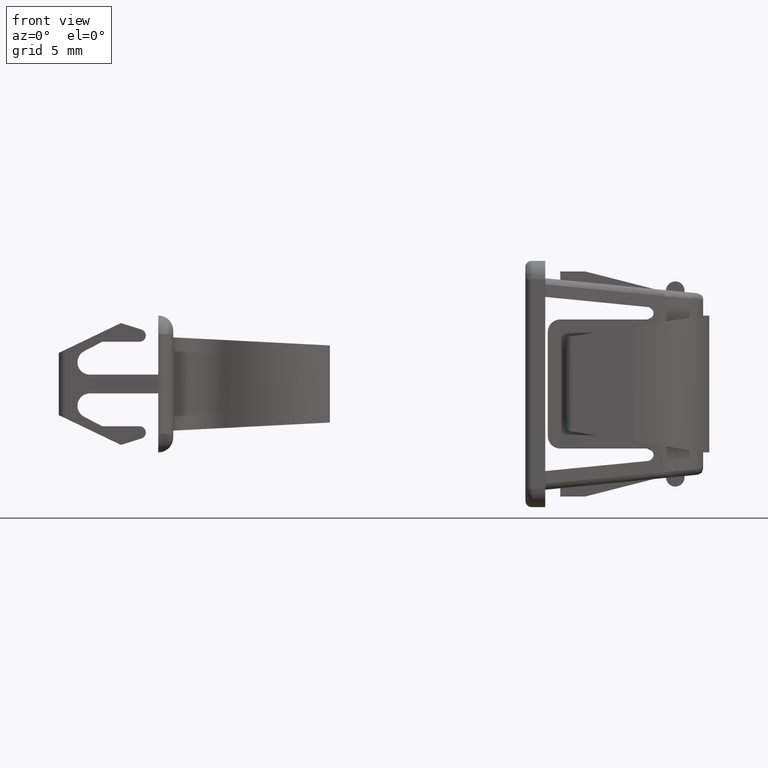
[diagram: clean part render]
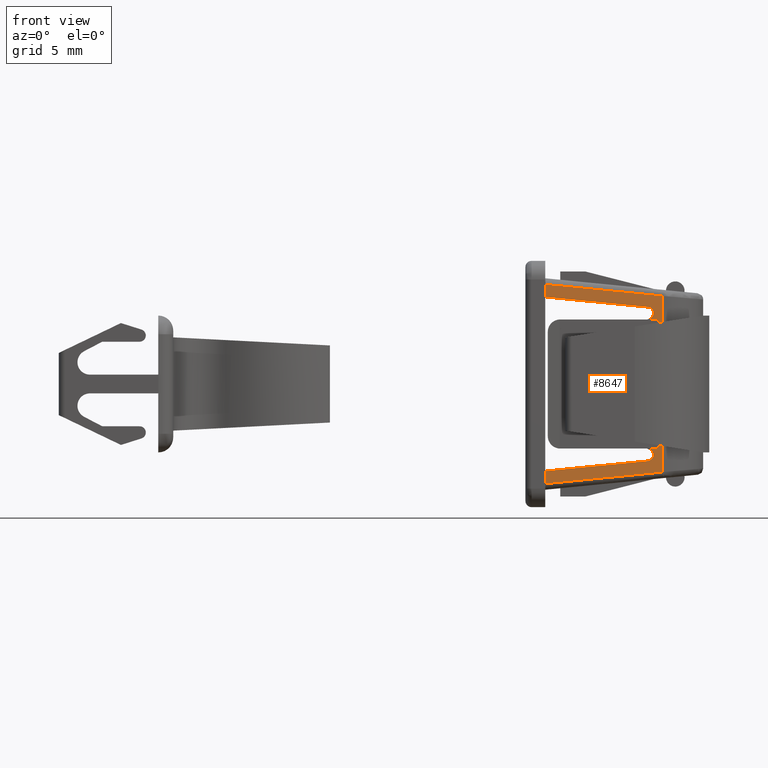
[diagram: same view with one face highlighted and labeled with its STEP entity id]
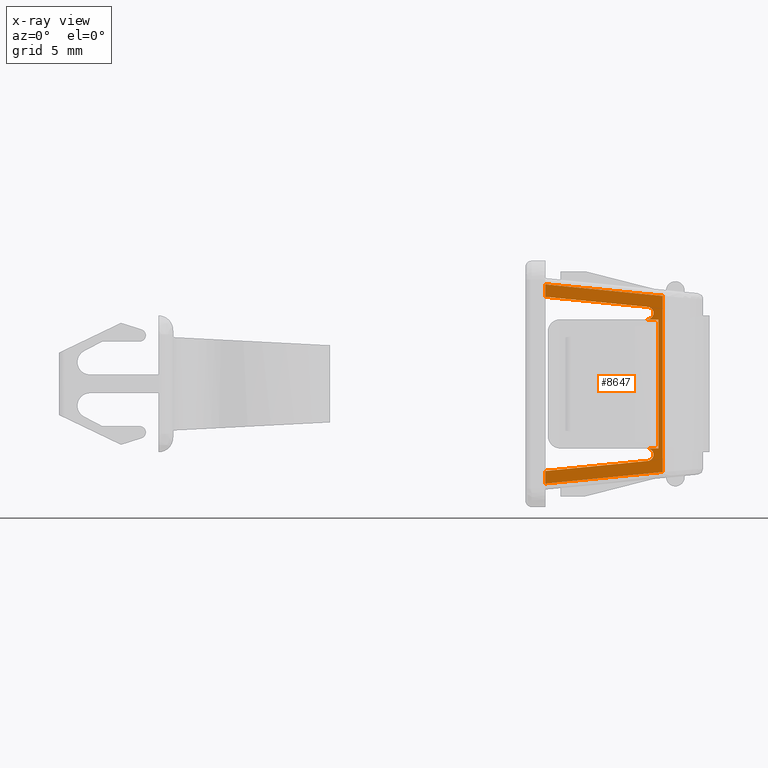
[diagram: x-ray of the same camera — body ghosted, the highlighted face saturated]
A machine part, front view. The second image highlights one B-rep face of the part: STEP entity #8647.
The next image is the same camera in x-ray: the body ghosted, the highlighted face saturated — about 0% of this face is hidden behind the body in this view.
In plain terms, the highlighted face is a freeform B-spline surface patch.
Its self-contained STEP definition (entity closure, byte-faithful):
#3408=CARTESIAN_POINT('',(1.600006000000120,-5.749984999999900,6.999995952759200));
#3409=VERTEX_POINT('',#3408);
#3410=CARTESIAN_POINT('',(1.600005999999895,-5.749984999999930,8.006895530063730));
#3411=VERTEX_POINT('',#3410);
#3412=CARTESIAN_POINT('',(1.600006000000120,-5.749984999999900,6.999995952759200));
#3413=CARTESIAN_POINT('',(1.600005999999895,-5.749984999999930,8.006895530063730));
#3414=QUASI_UNIFORM_CURVE('',1,(#3412,#3413),.UNSPECIFIED.,.F.,.U.);
#3415=EDGE_CURVE('',#3409,#3411,#3414,.T.);
#3505=CARTESIAN_POINT('',(1.600005999999895,-5.749984999999930,-8.006894479112740));
#3506=VERTEX_POINT('',#3505);
#3520=CARTESIAN_POINT('',(1.600005999999895,-5.749984999999930,-6.999995999999999));
#3521=VERTEX_POINT('',#3520);
#3522=CARTESIAN_POINT('',(1.600005999999895,-5.749984999999930,-8.006894479112740));
#3523=CARTESIAN_POINT('',(1.600005999999895,-5.749984999999930,-6.999995999999999));
#3524=QUASI_UNIFORM_CURVE('',1,(#3522,#3523),.UNSPECIFIED.,.F.,.U.);
#3525=EDGE_CURVE('',#3506,#3521,#3524,.T.);
#5652=CARTESIAN_POINT('',(11.047156694788740,-3.929597809131050,-7.076996171099360));
#5653=VERTEX_POINT('',#5652);
#5722=CARTESIAN_POINT('',(1.600005999999895,-5.749984999999930,-8.006894479112740));
#5723=CARTESIAN_POINT('',(11.047156694788740,-3.929597809131050,-7.076996171099360));
#5724=QUASI_UNIFORM_CURVE('',1,(#5722,#5723),.UNSPECIFIED.,.F.,.U.);
#5725=EDGE_CURVE('',#3506,#5653,#5724,.T.);
#5745=CARTESIAN_POINT('',(11.047156694788740,-3.929597809131050,7.076996453783846));
#5746=VERTEX_POINT('',#5745);
#5747=CARTESIAN_POINT('',(11.047156694788740,-3.929597809131050,7.076996453783846));
#5748=CARTESIAN_POINT('',(1.600005999999895,-5.749984999999930,8.006895530063730));
#5749=QUASI_UNIFORM_CURVE('',1,(#5747,#5748),.UNSPECIFIED.,.F.,.U.);
#5750=EDGE_CURVE('',#5746,#3411,#5749,.T.);
#7713=CARTESIAN_POINT('',(10.681794803802900,-4.0,-5.190498000000000));
#7714=VERTEX_POINT('',#7713);
#7720=CARTESIAN_POINT('',(10.681794803802900,-4.0,5.190499000000000));
#7721=VERTEX_POINT('',#7720);
#7722=CARTESIAN_POINT('',(10.681794803802900,-4.0,-5.190498000000000));
#7723=CARTESIAN_POINT('',(10.681794803802900,-4.0,5.190499000000000));
#7724=QUASI_UNIFORM_CURVE('',1,(#7722,#7723),.UNSPECIFIED.,.F.,.U.);
#7725=EDGE_CURVE('',#7714,#7721,#7724,.T.);
#7766=CARTESIAN_POINT('',(9.799987000000000,-4.169917013363225,5.190499000000000));
#7767=VERTEX_POINT('',#7766);
#7768=CARTESIAN_POINT('',(9.799987000000000,-4.169917013363225,5.190499000000000));
#7769=CARTESIAN_POINT('',(10.681794803802900,-4.0,5.190499000000000));
#7770=QUASI_UNIFORM_CURVE('',1,(#7768,#7769),.UNSPECIFIED.,.F.,.U.);
#7771=EDGE_CURVE('',#7767,#7721,#7770,.T.);
#7786=CARTESIAN_POINT('',(9.799987000000000,-4.169917013363225,-5.190498000000000));
#7787=VERTEX_POINT('',#7786);
#7793=CARTESIAN_POINT('',(9.799987000000000,-4.169917013363225,-5.190498000000000));
#7794=CARTESIAN_POINT('',(10.681794803802900,-4.0,-5.190498000000000));
#7795=QUASI_UNIFORM_CURVE('',1,(#7793,#7794),.UNSPECIFIED.,.F.,.U.);
#7796=EDGE_CURVE('',#7787,#7714,#7795,.T.);
#8060=CARTESIAN_POINT('',(9.850609483821970,-4.160162482701420,-6.187928763153741));
#8061=VERTEX_POINT('',#8060);
#8062=CARTESIAN_POINT('',(1.600005999999895,-5.749984999999930,-6.999995999999999));
#8063=CARTESIAN_POINT('',(9.850609483821970,-4.160162482701420,-6.187928763153741));
#8064=QUASI_UNIFORM_CURVE('',1,(#8062,#8063),.UNSPECIFIED.,.F.,.U.);
#8065=EDGE_CURVE('',#3521,#8061,#8064,.T.);
#8087=CARTESIAN_POINT('',(9.851124153902369,-4.160063310067020,6.187877117221470));
#8088=VERTEX_POINT('',#8087);
#8094=CARTESIAN_POINT('',(9.851124153902369,-4.160063310067020,6.187877117221470));
#8095=CARTESIAN_POINT('',(1.600006000000120,-5.749984999999900,6.999995952759200));
#8096=QUASI_UNIFORM_CURVE('',1,(#8094,#8095),.UNSPECIFIED.,.F.,.U.);
#8097=EDGE_CURVE('',#8088,#3409,#8096,.T.);
#8169=CARTESIAN_POINT('',(9.851124153902369,-4.160063310067020,6.187877117221470));
#8170=CARTESIAN_POINT('',(10.323654226746058,-4.069010703869064,6.139294676173411));
#8171=CARTESIAN_POINT('',(10.299331099099369,-4.073697567817821,5.664896838086705));
#8172=CARTESIAN_POINT('',(10.275007971452688,-4.078384431766580,5.190498999999999));
#8173=CARTESIAN_POINT('',(9.799987000000000,-4.169917013363225,5.190498999999999));
#8181=(BOUNDED_CURVE()B_SPLINE_CURVE(2,(#8169,#8170,#8171,#8172,#8173),.UNSPECIFIED.,.F.,.U.)B_SPLINE_CURVE_WITH_KNOTS((3,2,3),(0.0,0.500000000000000,1.0),.UNSPECIFIED.)CURVE()GEOMETRIC_REPRESENTATION_ITEM()RATIONAL_B_SPLINE_CURVE((1.0,0.724984249424285,1.0,0.724984249424285,1.0))REPRESENTATION_ITEM(''));
#8182=EDGE_CURVE('',#8088,#7767,#8181,.T.);
#8223=CARTESIAN_POINT('',(9.799987000000000,-4.169917013363225,-5.190498000000000));
#8224=CARTESIAN_POINT('',(10.275254109555263,-4.078337003005932,-5.190497999999999));
#8225=CARTESIAN_POINT('',(10.299344277696481,-4.073695028412012,-5.665154180012378));
#8226=CARTESIAN_POINT('',(10.323434445837687,-4.069053053818091,-6.139810360024756));
#8227=CARTESIAN_POINT('',(9.850609483821970,-4.160162482701420,-6.187928763153741));
#8235=(BOUNDED_CURVE()B_SPLINE_CURVE(2,(#8223,#8224,#8225,#8226,#8227),.UNSPECIFIED.,.F.,.U.)B_SPLINE_CURVE_WITH_KNOTS((3,2,3),(0.0,0.500000000000000,1.0),.UNSPECIFIED.)CURVE()GEOMETRIC_REPRESENTATION_ITEM()RATIONAL_B_SPLINE_CURVE((1.0,0.724806056809422,1.0,0.724806056809422,1.0))REPRESENTATION_ITEM(''));
#8236=EDGE_CURVE('',#7787,#8061,#8235,.T.);
#8599=CARTESIAN_POINT('',(11.047156694788740,-3.929597809131050,-7.076996171099360));
#8600=CARTESIAN_POINT('',(11.047156694788740,-3.929597809131050,7.076996453783846));
#8601=QUASI_UNIFORM_CURVE('',1,(#8599,#8600),.UNSPECIFIED.,.F.,.U.);
#8602=EDGE_CURVE('',#5653,#5746,#8601,.T.);
#8628=CARTESIAN_POINT('',(1.128120786174370,-5.840913347240357,-8.806782901168758));
#8629=CARTESIAN_POINT('',(11.519041401829620,-3.838669559543808,-8.806782901168758));
#8630=CARTESIAN_POINT('',(1.128120786174370,-5.840913347240357,8.806783522596430));
#8631=CARTESIAN_POINT('',(11.519041401829620,-3.838669559543808,8.806783522596430));
#8632=B_SPLINE_SURFACE_WITH_KNOTS('',1,1,((#8628,#8630),(#8629,#8631)),.UNSPECIFIED.,.F.,.F.,.U.,(2,2),(2,2),(0.0,10.582070280725720),(0.0,17.613566423765189),.UNSPECIFIED.);
#8633=ORIENTED_EDGE('',*,*,#8602,.T.);
#8634=ORIENTED_EDGE('',*,*,#5750,.T.);
#8635=ORIENTED_EDGE('',*,*,#3415,.F.);
#8636=ORIENTED_EDGE('',*,*,#8097,.F.);
#8637=ORIENTED_EDGE('',*,*,#8182,.T.);
#8638=ORIENTED_EDGE('',*,*,#7771,.T.);
#8639=ORIENTED_EDGE('',*,*,#7725,.F.);
#8640=ORIENTED_EDGE('',*,*,#7796,.F.);
#8641=ORIENTED_EDGE('',*,*,#8236,.T.);
#8642=ORIENTED_EDGE('',*,*,#8065,.F.);
#8643=ORIENTED_EDGE('',*,*,#3525,.F.);
#8644=ORIENTED_EDGE('',*,*,#5725,.T.);
#8645=EDGE_LOOP('',(#8633,#8634,#8635,#8636,#8637,#8638,#8639,#8640,#8641,#8642,#8643,#8644));
#8646=FACE_OUTER_BOUND('',#8645,.T.);
#8647=ADVANCED_FACE('',(#8646),#8632,.T.);